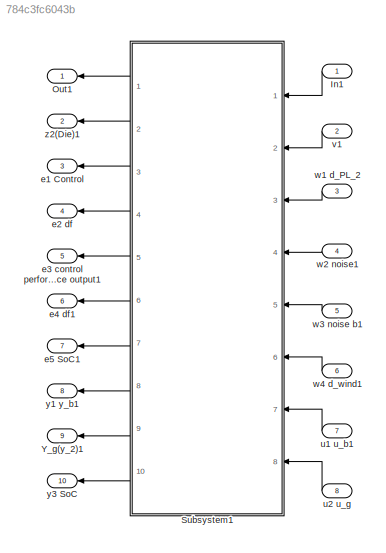
MODEL slx_784c3fc6043b
KIND model
CONFIG AbsTol = auto
CONFIG EnableMultiTasking = off
CONFIG FixedStep = auto
CONFIG MaxStep = auto
CONFIG MinStep = auto
CONFIG RelTol = 1e-3
CONFIG SampleTimeConstraint = Unconstrained
CONFIG Solver = VariableStepAuto
CONFIG SolverName = VariableStepAuto
CONFIG StartTime = 0.0
CONFIG StopTime = 10.0
BLOCK [Inport] In1
  IconDisplay = Port number
BLOCK [Outport] Out1
  IconDisplay = Port number
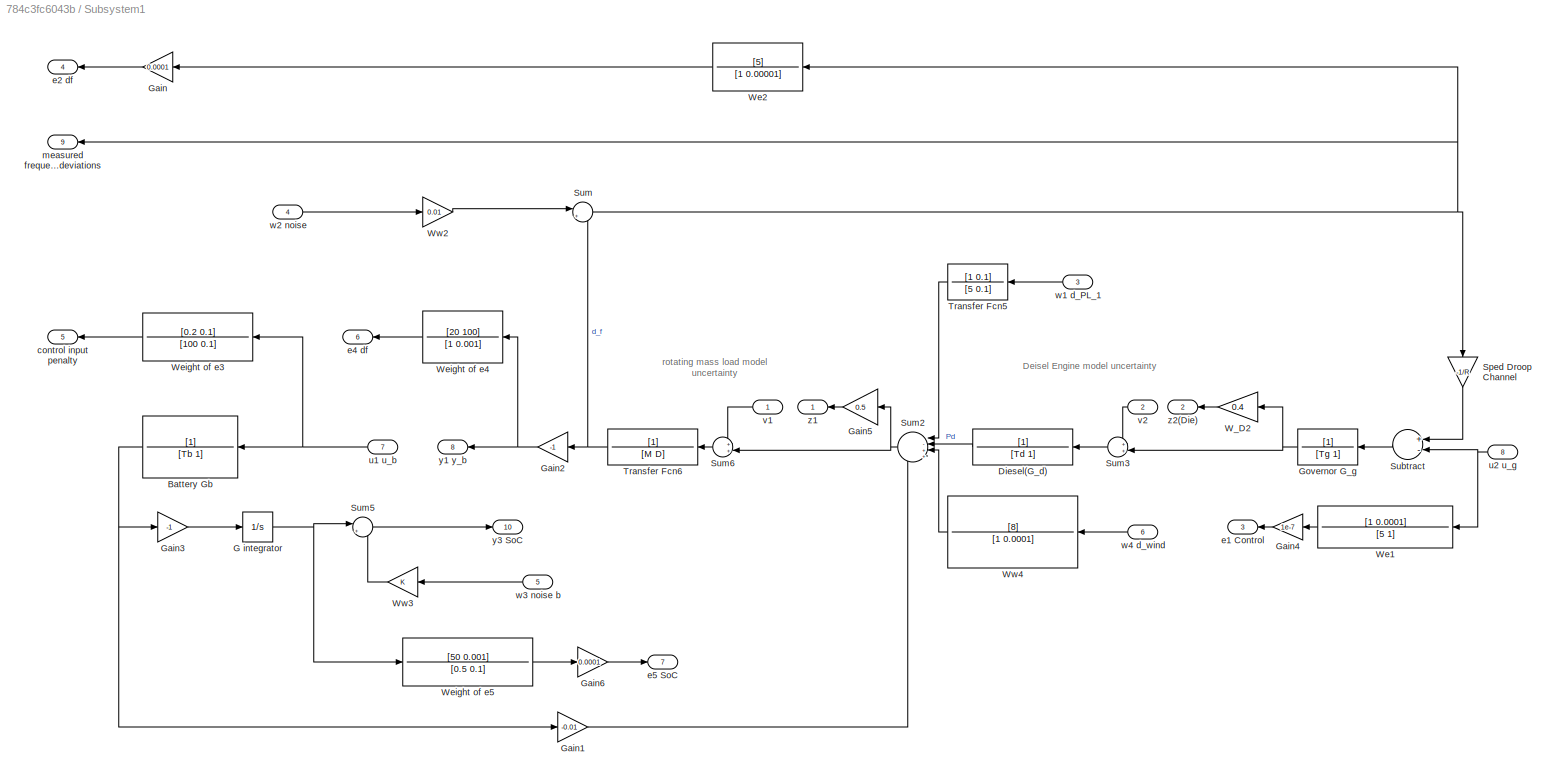
BLOCK [SubSystem] Subsystem1
  Ports = [8, 10]
  RequestExecContextInheritance = off
BLOCK [TransferFcn] Subsystem1/Battery Gb
  Denominator = [Tb 1]
BLOCK [TransferFcn] Subsystem1/Diesel(G_d)
  Denominator = [Td 1]
BLOCK [Integrator] Subsystem1/G integrator	
  Ports = [1, 1]
BLOCK [Gain] Subsystem1/Gain
  Gain = 0.0001
  OutDataTypeStr = Inherit: Inherit via internal rule
  ParamDataTypeStr = Inherit: Inherit via internal rule
  SaturateOnIntegerOverflow = off
BLOCK [Gain] Subsystem1/Gain1
  Gain = -0.01
  OutDataTypeStr = Inherit: Inherit via internal rule
  ParamDataTypeStr = Inherit: Inherit via internal rule
  SaturateOnIntegerOverflow = off
BLOCK [Gain] Subsystem1/Gain2
  Gain = -1
  OutDataTypeStr = Inherit: Inherit via internal rule
  ParamDataTypeStr = Inherit: Inherit via internal rule
  SaturateOnIntegerOverflow = off
BLOCK [Gain] Subsystem1/Gain3
  Gain = -1
  OutDataTypeStr = Inherit: Inherit via internal rule
  ParamDataTypeStr = Inherit: Inherit via internal rule
  SaturateOnIntegerOverflow = off
BLOCK [Gain] Subsystem1/Gain4
  Gain = 1e-7
  OutDataTypeStr = Inherit: Inherit via internal rule
  ParamDataTypeStr = Inherit: Inherit via internal rule
  SaturateOnIntegerOverflow = off
BLOCK [Gain] Subsystem1/Gain5
  Gain = 0.5
  OutDataTypeStr = Inherit: Inherit via internal rule
  ParamDataTypeStr = Inherit: Inherit via internal rule
  SaturateOnIntegerOverflow = off
BLOCK [Gain] Subsystem1/Gain6
  Gain = 0.0001
  OutDataTypeStr = Inherit: Inherit via internal rule
  ParamDataTypeStr = Inherit: Inherit via internal rule
  SaturateOnIntegerOverflow = off
BLOCK [TransferFcn] Subsystem1/Governor G_g
  Denominator = [Tg 1]
BLOCK [Gain] Subsystem1/Sped Droop Channel
  Gain = -1/R
  OutDataTypeStr = Inherit: Inherit via internal rule
  ParamDataTypeStr = Inherit: Inherit via internal rule
  SaturateOnIntegerOverflow = off
BLOCK [Sum] Subsystem1/Subtract
  InputSameDT = off
  Inputs = +-
  OutDataTypeStr = Inherit: Inherit via internal rule
  Ports = [2, 1]
  SaturateOnIntegerOverflow = off
BLOCK [Sum] Subsystem1/Sum
  IconShape = round
  InputSameDT = off
  Inputs = |++
  OutDataTypeStr = Inherit: Inherit via internal rule
  Ports = [2, 1]
  SaturateOnIntegerOverflow = off
BLOCK [Sum] Subsystem1/Sum2
  IconShape = round
  InputSameDT = off
  Inputs = |-+++
  OutDataTypeStr = Inherit: Inherit via internal rule
  Ports = [4, 1]
  SaturateOnIntegerOverflow = off
BLOCK [Sum] Subsystem1/Sum3
  IconShape = round
  InputSameDT = off
  Inputs = ++|
  OutDataTypeStr = Inherit: Inherit via internal rule
  Ports = [2, 1]
  SaturateOnIntegerOverflow = off
BLOCK [Sum] Subsystem1/Sum5
  IconShape = round
  InputSameDT = off
  Inputs = |++
  OutDataTypeStr = Inherit: Inherit via internal rule
  Ports = [2, 1]
  SaturateOnIntegerOverflow = off
BLOCK [Sum] Subsystem1/Sum6
  IconShape = round
  InputSameDT = off
  Inputs = ++|
  OutDataTypeStr = Inherit: Inherit via internal rule
  Ports = [2, 1]
  SaturateOnIntegerOverflow = off
BLOCK [TransferFcn] Subsystem1/Transfer Fcn5
  Denominator = [5 0.1]
  Numerator = [1 0.1]
BLOCK [TransferFcn] Subsystem1/Transfer Fcn6
  Denominator = [M D]
BLOCK [Gain] Subsystem1/W_D2
  Gain = 0.4
  OutDataTypeStr = Inherit: Inherit via internal rule
  ParamDataTypeStr = Inherit: Inherit via internal rule
  SaturateOnIntegerOverflow = off
BLOCK [TransferFcn] Subsystem1/We1
  Denominator = [5 1]
  Numerator = [1 0.0001]
BLOCK [TransferFcn] Subsystem1/We2
  Denominator = [1 0.00001]
  Numerator = [5]
BLOCK [TransferFcn] Subsystem1/Weight of e3
  Denominator = [100 0.1]
  Numerator = [0.2 0.1]
BLOCK [TransferFcn] Subsystem1/Weight of e4
  Denominator = [1 0.001]
  Numerator = [20 100]
BLOCK [TransferFcn] Subsystem1/Weight of e5
  Denominator = [0.5 0.1]
  Numerator = [50 0.001]
BLOCK [Gain] Subsystem1/Ww2
  Gain = 0.01
  OutDataTypeStr = Inherit: Inherit via internal rule
  ParamDataTypeStr = Inherit: Inherit via internal rule
  SaturateOnIntegerOverflow = off
BLOCK [Gain] Subsystem1/Ww3
  OutDataTypeStr = Inherit: Inherit via internal rule
  ParamDataTypeStr = Inherit: Inherit via internal rule
  SaturateOnIntegerOverflow = off
BLOCK [TransferFcn] Subsystem1/Ww4
  Denominator = [1 0.0001]
  Numerator = [8]
BLOCK [Outport] Subsystem1/control input penalty
  IconDisplay = Port number
  Port = 5
BLOCK [Outport] Subsystem1/e1 Control
  IconDisplay = Port number
  Port = 3
BLOCK [Outport] Subsystem1/e2 df
  IconDisplay = Port number
  Port = 4
BLOCK [Outport] Subsystem1/e4 df
  IconDisplay = Port number
  Port = 6
BLOCK [Outport] Subsystem1/e5 SoC
  IconDisplay = Port number
  Port = 7
BLOCK [Outport] Subsystem1/measured frequency deviations
  IconDisplay = Port number
  Port = 9
BLOCK [Inport] Subsystem1/u1 u_b
  IconDisplay = Port number
  Port = 7
BLOCK [Inport] Subsystem1/u2 u_g 
  IconDisplay = Port number
  Port = 8
BLOCK [Inport] Subsystem1/v1
  IconDisplay = Port number
BLOCK [Inport] Subsystem1/v2
  IconDisplay = Port number
  Port = 2
BLOCK [Inport] Subsystem1/w1 d_PL_1
  IconDisplay = Port number
  Port = 3
BLOCK [Inport] Subsystem1/w2 noise
  IconDisplay = Port number
  Port = 4
BLOCK [Inport] Subsystem1/w3 noise b
  IconDisplay = Port number
  Port = 5
BLOCK [Inport] Subsystem1/w4 d_wind
  IconDisplay = Port number
  Port = 6
BLOCK [Outport] Subsystem1/y1 y_b
  IconDisplay = Port number
  Port = 8
BLOCK [Outport] Subsystem1/y3 SoC
  IconDisplay = Port number
  Port = 10
BLOCK [Outport] Subsystem1/z1
  IconDisplay = Port number
BLOCK [Outport] Subsystem1/z2(Die)
  IconDisplay = Port number
  Port = 2
BLOCK [Outport] Y_g(y_2)1
  IconDisplay = Port number
  Port = 9
BLOCK [Outport] e1 Control
  IconDisplay = Port number
  Port = 3
BLOCK [Outport] e2 df
  IconDisplay = Port number
  Port = 4
BLOCK [Outport] e3 control performance output1
  IconDisplay = Port number
  Port = 5
BLOCK [Outport] e4 df1
  IconDisplay = Port number
  Port = 6
BLOCK [Outport] e5 SoC1
  IconDisplay = Port number
  Port = 7
BLOCK [Inport] u1 u_b1
  IconDisplay = Port number
  Port = 7
BLOCK [Inport] u2 u_g 
  IconDisplay = Port number
  Port = 8
BLOCK [Inport] v1
  IconDisplay = Port number
  Port = 2
BLOCK [Inport] w1 d_PL_2
  IconDisplay = Port number
  Port = 3
BLOCK [Inport] w2 noise1
  IconDisplay = Port number
  Port = 4
BLOCK [Inport] w3 noise b1
  IconDisplay = Port number
  Port = 5
BLOCK [Inport] w4 d_wind1
  IconDisplay = Port number
  Port = 6
BLOCK [Outport] y1 y_b1
  IconDisplay = Port number
  Port = 8
BLOCK [Outport] y3 SoC
  IconDisplay = Port number
  Port = 10
BLOCK [Outport] z2(Die)1
  IconDisplay = Port number
  Port = 2
ANNOTATION Subsystem1: rotating mass load model uncertainty
ANNOTATION Subsystem1: Deisel Engine model uncertainty
LINE In1:1 -> Subsystem1:1
NET Subsystem1/Battery Gb:1 -> Subsystem1/Gain1:1, Subsystem1/Gain3:1
LINE Subsystem1/Diesel(G_d):1 -> Subsystem1/Sum2:2
NET Subsystem1/G integrator	:1 -> Subsystem1/Sum5:1, Subsystem1/Weight of e5:1
LINE Subsystem1/Gain1:1 -> Subsystem1/Sum2:4
NET Subsystem1/Gain2:1 -> Subsystem1/Weight of e4:1, Subsystem1/y1 y_b:1
LINE Subsystem1/Gain3:1 -> Subsystem1/G integrator	:1
LINE Subsystem1/Gain4:1 -> Subsystem1/e1 Control:1
LINE Subsystem1/Gain5:1 -> Subsystem1/z1:1
LINE Subsystem1/Gain6:1 -> Subsystem1/e5 SoC:1
LINE Subsystem1/Gain:1 -> Subsystem1/e2 df:1
NET Subsystem1/Governor G_g:1 -> Subsystem1/Sum3:2, Subsystem1/W_D2:1
LINE Subsystem1/Sped Droop Channel:1 -> Subsystem1/Subtract:1
LINE Subsystem1/Subtract:1 -> Subsystem1/Governor G_g:1
NET Subsystem1/Sum2:1 -> Subsystem1/Gain5:1, Subsystem1/Sum6:2
LINE Subsystem1/Sum3:1 -> Subsystem1/Diesel(G_d):1
LINE Subsystem1/Sum5:1 -> Subsystem1/y3 SoC:1
LINE Subsystem1/Sum6:1 -> Subsystem1/Transfer Fcn6:1
NET Subsystem1/Sum:1 -> Subsystem1/Sped Droop Channel:1, Subsystem1/We2:1, Subsystem1/measured frequency deviations:1
LINE Subsystem1/Transfer Fcn5:1 -> Subsystem1/Sum2:1
NET Subsystem1/Transfer Fcn6:1 -> Subsystem1/Gain2:1, Subsystem1/Sum:2
LINE Subsystem1/W_D2:1 -> Subsystem1/z2(Die):1
LINE Subsystem1/We1:1 -> Subsystem1/Gain4:1
LINE Subsystem1/We2:1 -> Subsystem1/Gain:1
LINE Subsystem1/Weight of e3:1 -> Subsystem1/control input penalty:1
LINE Subsystem1/Weight of e4:1 -> Subsystem1/e4 df:1
LINE Subsystem1/Weight of e5:1 -> Subsystem1/Gain6:1
LINE Subsystem1/Ww2:1 -> Subsystem1/Sum:1
LINE Subsystem1/Ww3:1 -> Subsystem1/Sum5:2
LINE Subsystem1/Ww4:1 -> Subsystem1/Sum2:3
NET Subsystem1/u1 u_b:1 -> Subsystem1/Battery Gb:1, Subsystem1/Weight of e3:1
NET Subsystem1/u2 u_g :1 -> Subsystem1/Subtract:2, Subsystem1/We1:1
LINE Subsystem1/v1:1 -> Subsystem1/Sum6:1
LINE Subsystem1/v2:1 -> Subsystem1/Sum3:1
LINE Subsystem1/w1 d_PL_1:1 -> Subsystem1/Transfer Fcn5:1
LINE Subsystem1/w2 noise:1 -> Subsystem1/Ww2:1
LINE Subsystem1/w3 noise b:1 -> Subsystem1/Ww3:1
LINE Subsystem1/w4 d_wind:1 -> Subsystem1/Ww4:1
LINE Subsystem1:1 -> Out1:1
LINE Subsystem1:10 -> y3 SoC:1
LINE Subsystem1:2 -> z2(Die)1:1
LINE Subsystem1:3 -> e1 Control:1
LINE Subsystem1:4 -> e2 df:1
LINE Subsystem1:5 -> e3 control performance output1:1
LINE Subsystem1:6 -> e4 df1:1
LINE Subsystem1:7 -> e5 SoC1:1
LINE Subsystem1:8 -> y1 y_b1:1
LINE Subsystem1:9 -> Y_g(y_2)1:1
LINE u1 u_b1:1 -> Subsystem1:7
LINE u2 u_g :1 -> Subsystem1:8
LINE v1:1 -> Subsystem1:2
LINE w1 d_PL_2:1 -> Subsystem1:3
LINE w2 noise1:1 -> Subsystem1:4
LINE w3 noise b1:1 -> Subsystem1:5
LINE w4 d_wind1:1 -> Subsystem1:6
note: NET lines group one-source signal fan-out (src -> all destinations, sorted); 1:1 wires keep LINE
